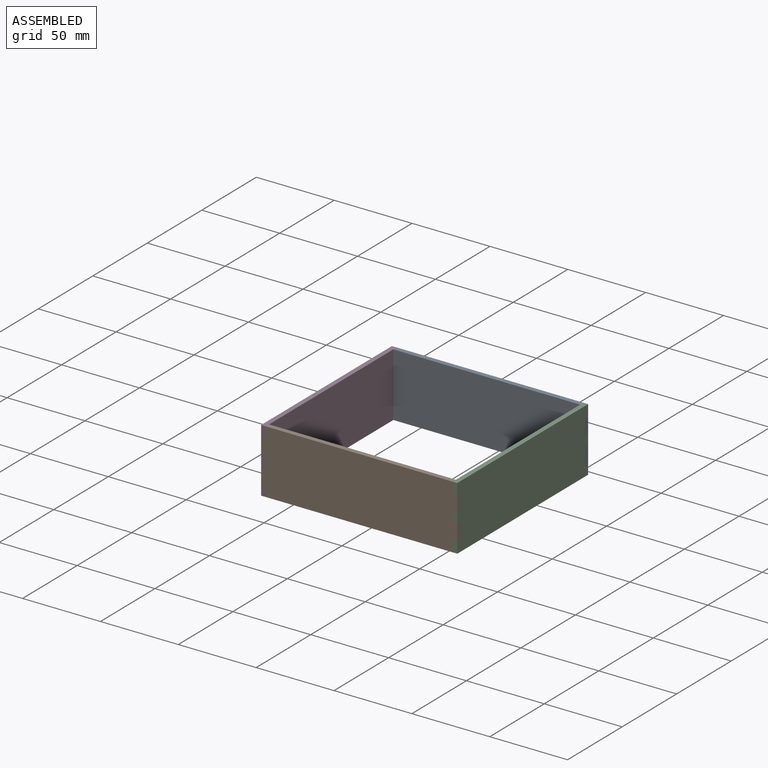
[diagram: assembled view]
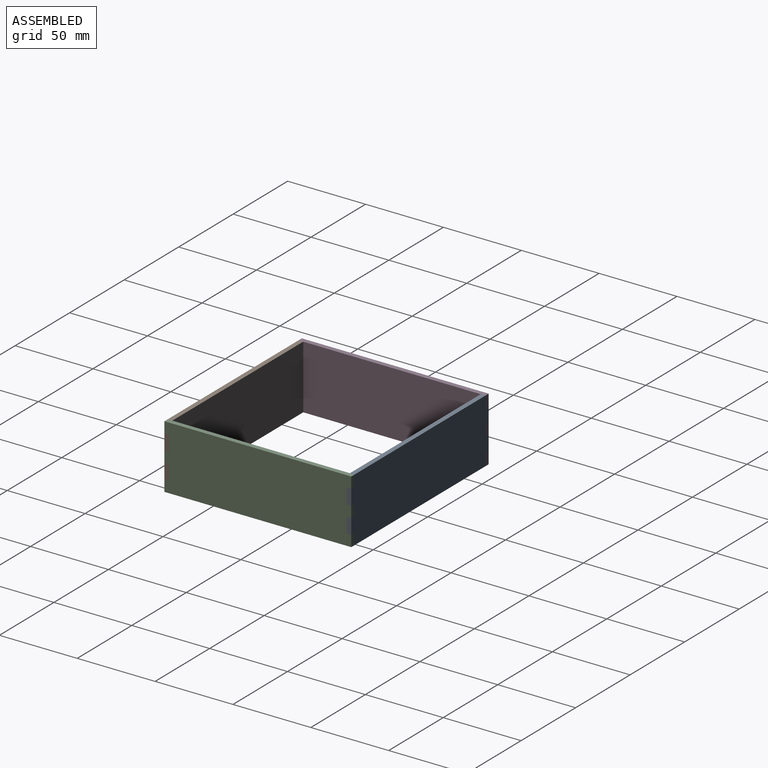
[diagram: assembled view, second angle]
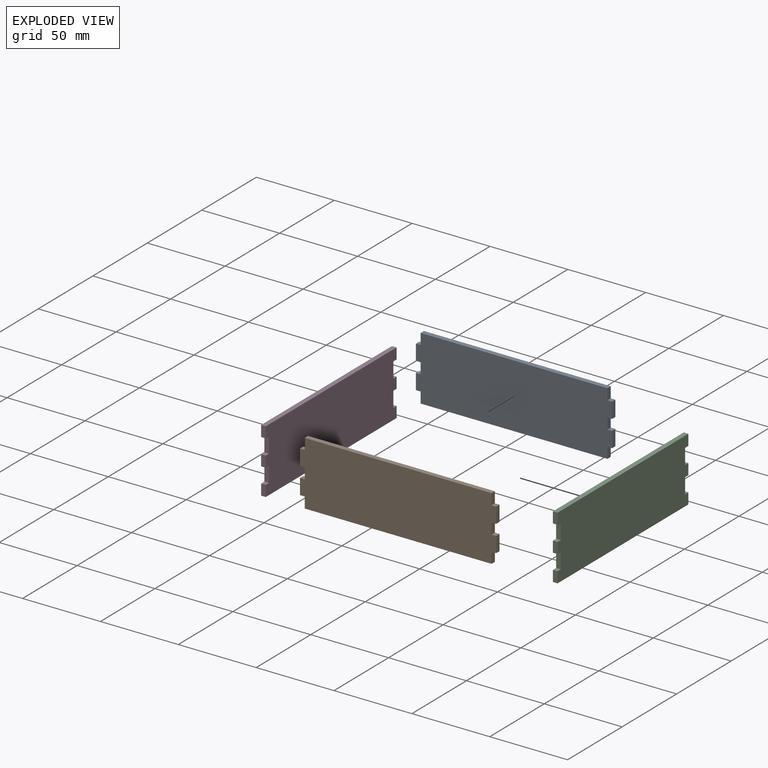
[diagram: exploded view]
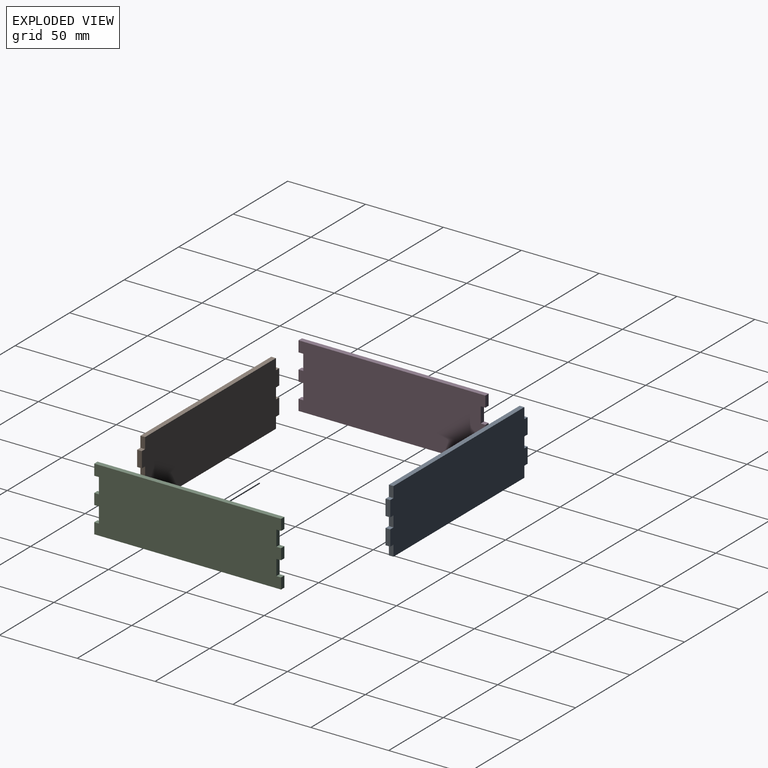
[diagram: exploded view, second angle]
ASSEMBLY  parts=4 mates=3
PART A: 22 faces, bbox 3x126x41 mm
  f0: plane 7x3mm, normal (0,1,0), area 21mm2, adj f1,f19,f20,f21
  f1: plane 3x3mm, normal (0,0,-1), area 9mm2, adj f0,f2,f20,f21
  f2: plane 10x3mm, normal (0,1,0), area 30mm2, adj f1,f3,f20,f21
  f3: plane 3x3mm, normal (0,0,1), area 9mm2, adj f2,f4,f20,f21
  f4: plane 7x3mm, normal (0,1,0), area 21mm2, adj f3,f5,f20,f21
  f5: plane 120x3mm, normal (0,0,1), area 360mm2, adj f4,f6,f20,f21
  f6: plane 7x3mm, normal (0,-1,0), area 21mm2, adj f5,f7,f20,f21
  f7: plane 3x3mm, normal (0,0,1), area 9mm2, adj f6,f8,f20,f21
  f8: plane 10x3mm, normal (0,-1,0), area 30mm2, adj f7,f9,f20,f21
  f9: plane 3x3mm, normal (0,0,-1), area 9mm2, adj f8,f10,f20,f21
  f10: plane 7x3mm, normal (0,-1,0), area 21mm2, adj f9,f11,f20,f21
  f11: plane 3x3mm, normal (0,0,1), area 9mm2, adj f10,f12,f20,f21
  f12: plane 10x3mm, normal (0,-1,0), area 30mm2, adj f11,f13,f20,f21
  f13: plane 3x3mm, normal (0,0,-1), area 9mm2, adj f12,f14,f20,f21
  f14: plane 7x3mm, normal (0,-1,0), area 21mm2, adj f13,f15,f20,f21
  f15: plane 120x3mm, normal (0,0,-1), area 360mm2, adj f14,f16,f20,f21
  f16: plane 7x3mm, normal (0,1,0), area 21mm2, adj f15,f17,f20,f21
  f17: plane 3x3mm, normal (0,0,-1), area 9mm2, adj f16,f18,f20,f21
  f18: plane 10x3mm, normal (0,1,0), area 30mm2, adj f17,f19,f20,f21
  f19: plane 3x3mm, normal (0,0,1), area 9mm2, adj f0,f18,f20,f21
  f20: plane 126x41mm, normal (1,0,0), area 5040mm2, adj f0,f1,f2,f3,f4,f5,f6,f7
  f21: plane 126x41mm, normal (-1,0,0), area 5040mm2, adj f0,f1,f2,f3,f4,f5,f6,f7
PART B: 22 faces, bbox 3x126x41 mm
  f0: plane 7x3mm, normal (0,1,0), area 21mm2, adj f1,f19,f20,f21
  f1: plane 3x3mm, normal (0,0,-1), area 9mm2, adj f0,f2,f20,f21
  f2: plane 10x3mm, normal (0,1,0), area 30mm2, adj f1,f3,f20,f21
  f3: plane 3x3mm, normal (0,0,1), area 9mm2, adj f2,f4,f20,f21
  f4: plane 7x3mm, normal (0,1,0), area 21mm2, adj f3,f5,f20,f21
  f5: plane 120x3mm, normal (0,0,1), area 360mm2, adj f4,f6,f20,f21
  f6: plane 7x3mm, normal (0,-1,0), area 21mm2, adj f5,f7,f20,f21
  f7: plane 3x3mm, normal (0,0,1), area 9mm2, adj f6,f8,f20,f21
  f8: plane 10x3mm, normal (0,-1,0), area 30mm2, adj f7,f9,f20,f21
  f9: plane 3x3mm, normal (0,0,-1), area 9mm2, adj f8,f10,f20,f21
  f10: plane 7x3mm, normal (0,-1,0), area 21mm2, adj f9,f11,f20,f21
  f11: plane 3x3mm, normal (0,0,1), area 9mm2, adj f10,f12,f20,f21
  f12: plane 10x3mm, normal (0,-1,0), area 30mm2, adj f11,f13,f20,f21
  f13: plane 3x3mm, normal (0,0,-1), area 9mm2, adj f12,f14,f20,f21
  f14: plane 7x3mm, normal (0,-1,0), area 21mm2, adj f13,f15,f20,f21
  f15: plane 120x3mm, normal (0,0,-1), area 360mm2, adj f14,f16,f20,f21
  f16: plane 7x3mm, normal (0,1,0), area 21mm2, adj f15,f17,f20,f21
  f17: plane 3x3mm, normal (0,0,-1), area 9mm2, adj f16,f18,f20,f21
  f18: plane 10x3mm, normal (0,1,0), area 30mm2, adj f17,f19,f20,f21
  f19: plane 3x3mm, normal (0,0,1), area 9mm2, adj f0,f18,f20,f21
  f20: plane 126x41mm, normal (1,0,0), area 5040mm2, adj f0,f1,f2,f3,f4,f5,f6,f7
  f21: plane 126x41mm, normal (-1,0,0), area 5040mm2, adj f0,f1,f2,f3,f4,f5,f6,f7
PART C: 22 faces, bbox 3x120x41 mm
  f0: plane 10x3mm, normal (0,1,0), area 30mm2, adj f1,f19,f20,f21
  f1: plane 3x3mm, normal (0,0,-1), area 9mm2, adj f0,f2,f20,f21
  f2: plane 7x3mm, normal (0,1,0), area 21mm2, adj f1,f3,f20,f21
  f3: plane 3x3mm, normal (0,0,1), area 9mm2, adj f2,f4,f20,f21
  f4: plane 10x3mm, normal (0,1,0), area 30mm2, adj f3,f5,f20,f21
  f5: plane 3x3mm, normal (0,0,-1), area 9mm2, adj f4,f6,f20,f21
  f6: plane 7x3mm, normal (0,1,0), area 21mm2, adj f5,f7,f20,f21
  f7: plane 120x3mm, normal (0,0,1), area 360mm2, adj f6,f8,f20,f21
  f8: plane 7x3mm, normal (0,-1,0), area 21mm2, adj f7,f9,f20,f21
  f9: plane 3x3mm, normal (0,0,-1), area 9mm2, adj f8,f10,f20,f21
  f10: plane 10x3mm, normal (0,-1,0), area 30mm2, adj f9,f11,f20,f21
  f11: plane 3x3mm, normal (0,0,1), area 9mm2, adj f10,f12,f20,f21
  f12: plane 7x3mm, normal (0,-1,0), area 21mm2, adj f11,f13,f20,f21
  f13: plane 3x3mm, normal (0,0,-1), area 9mm2, adj f12,f14,f20,f21
  f14: plane 10x3mm, normal (0,-1,0), area 30mm2, adj f13,f15,f20,f21
  f15: plane 3x3mm, normal (0,0,1), area 9mm2, adj f14,f16,f20,f21
  f16: plane 7x3mm, normal (0,-1,0), area 21mm2, adj f15,f17,f20,f21
  f17: plane 120x3mm, normal (0,0,-1), area 360mm2, adj f16,f18,f20,f21
  f18: plane 7x3mm, normal (0,1,0), area 21mm2, adj f17,f19,f20,f21
  f19: plane 3x3mm, normal (0,0,1), area 9mm2, adj f0,f18,f20,f21
  f20: plane 120x41mm, normal (1,0,0), area 4800mm2, adj f0,f1,f2,f3,f4,f5,f6,f7
  f21: plane 120x41mm, normal (-1,0,0), area 4800mm2, adj f0,f1,f2,f3,f4,f5,f6,f7
PART D: 22 faces, bbox 3x120x41 mm
  f0: plane 10x3mm, normal (0,1,0), area 30mm2, adj f1,f19,f20,f21
  f1: plane 3x3mm, normal (0,0,-1), area 9mm2, adj f0,f2,f20,f21
  f2: plane 7x3mm, normal (0,1,0), area 21mm2, adj f1,f3,f20,f21
  f3: plane 3x3mm, normal (0,0,1), area 9mm2, adj f2,f4,f20,f21
  f4: plane 10x3mm, normal (0,1,0), area 30mm2, adj f3,f5,f20,f21
  f5: plane 3x3mm, normal (0,0,-1), area 9mm2, adj f4,f6,f20,f21
  f6: plane 7x3mm, normal (0,1,0), area 21mm2, adj f5,f7,f20,f21
  f7: plane 120x3mm, normal (0,0,1), area 360mm2, adj f6,f8,f20,f21
  f8: plane 7x3mm, normal (0,-1,0), area 21mm2, adj f7,f9,f20,f21
  f9: plane 3x3mm, normal (0,0,-1), area 9mm2, adj f8,f10,f20,f21
  f10: plane 10x3mm, normal (0,-1,0), area 30mm2, adj f9,f11,f20,f21
  f11: plane 3x3mm, normal (0,0,1), area 9mm2, adj f10,f12,f20,f21
  f12: plane 7x3mm, normal (0,-1,0), area 21mm2, adj f11,f13,f20,f21
  f13: plane 3x3mm, normal (0,0,-1), area 9mm2, adj f12,f14,f20,f21
  f14: plane 10x3mm, normal (0,-1,0), area 30mm2, adj f13,f15,f20,f21
  f15: plane 3x3mm, normal (0,0,1), area 9mm2, adj f14,f16,f20,f21
  f16: plane 7x3mm, normal (0,-1,0), area 21mm2, adj f15,f17,f20,f21
  f17: plane 120x3mm, normal (0,0,-1), area 360mm2, adj f16,f18,f20,f21
  f18: plane 7x3mm, normal (0,1,0), area 21mm2, adj f17,f19,f20,f21
  f19: plane 3x3mm, normal (0,0,1), area 9mm2, adj f0,f18,f20,f21
  f20: plane 120x41mm, normal (1,0,0), area 4800mm2, adj f0,f1,f2,f3,f4,f5,f6,f7
  f21: plane 120x41mm, normal (-1,0,0), area 4800mm2, adj f0,f1,f2,f3,f4,f5,f6,f7
PLACE A rot(axis=(0,0,1),90deg) t=(-64.3,-9.44,89.35)mm
PLACE B rot(axis=(0,0,-1),90deg) t=(-44.3,-26.44,89.35)mm
PLACE C t=(7.2,-27.94,21.35)mm fixed
PLACE D t=(-15.8,-27.94,21.35)mm
MATE fastened C.f9 <-> B.f3  axis (0,0,-1) through (7.2,-26.44,55.35)mm
MATE fastened A.f4 <-> D.f20  axis (1,0,0) through (-114.3,92.06,55.35)mm
MATE fastened D.f8 <-> B.f20  axis (0,-1,0) through (-115.8,-27.94,55.35)mm
